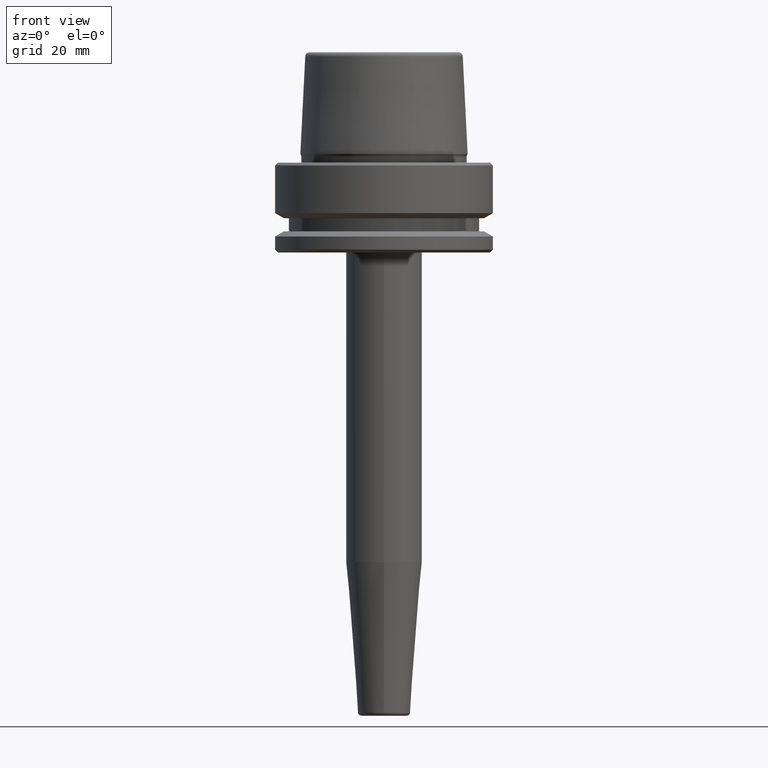
[diagram: clean part render]
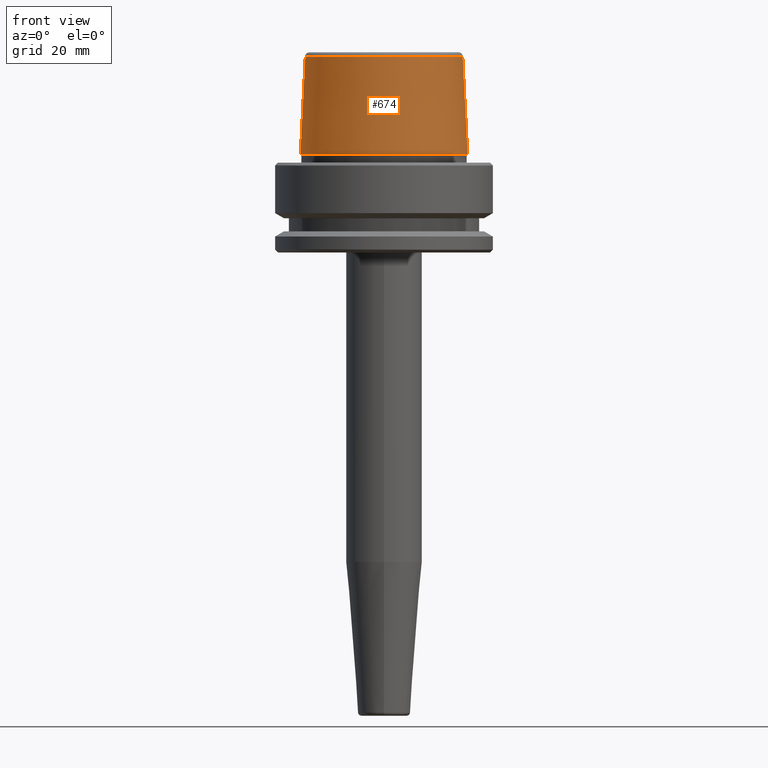
[diagram: same view with one face highlighted and labeled with its STEP entity id]
A machine part, front view. The second image highlights one B-rep face of the part: STEP entity #674.
In plain terms, the highlighted conical surface has half-angle 2.868 deg.
Its self-contained STEP definition (entity closure, byte-faithful):
#32 = EDGE_CURVE ( 'NONE', #615, #500, #248, .T. ) ;
#57 = CARTESIAN_POINT ( 'NONE',  ( -24.19537568275369200, 2.963078938405201500E-015, 2.500000000000002200 ) ) ;
#92 = DIRECTION ( 'NONE',  ( -0.0000000000000000000, -0.0000000000000000000, 1.000000000000000000 ) ) ;
#148 = VERTEX_POINT ( 'NONE', #57 ) ;
#158 = CARTESIAN_POINT ( 'NONE',  ( 24.19537568275369200, 2.963078938405201500E-015, 2.500000000000002200 ) ) ;
#186 = DIRECTION ( 'NONE',  ( -0.05003611051310804400, 0.0000000000000000000, -0.9987474093306675200 ) ) ;
#248 = LINE ( 'NONE', #158, #398 ) ;
#267 = ORIENTED_EDGE ( 'NONE', *, *, #32, .F. ) ;
#293 = VECTOR ( 'NONE', #186, 1000.000000000000200 ) ;
#324 = LINE ( 'NONE', #967, #293 ) ;
#387 = CIRCLE ( 'NONE', #440, 24.19537568275369200 ) ;
#398 = VECTOR ( 'NONE', #1055, 1000.000000000000200 ) ;
#423 = EDGE_LOOP ( 'NONE', ( #267, #523, #755, #830 ) ) ;
#440 = AXIS2_PLACEMENT_3D ( 'NONE', #1093, #502, #1189 ) ;
#456 = AXIS2_PLACEMENT_3D ( 'NONE', #663, #92, #767 ) ;
#500 = VERTEX_POINT ( 'NONE', #1222 ) ;
#502 = DIRECTION ( 'NONE',  ( -0.0000000000000000000, -0.0000000000000000000, 1.000000000000000000 ) ) ;
#523 = ORIENTED_EDGE ( 'NONE', *, *, #1216, .F. ) ;
#525 = FACE_OUTER_BOUND ( 'NONE', #423, .T. ) ;
#615 = VERTEX_POINT ( 'NONE', #1017 ) ;
#640 = CIRCLE ( 'NONE', #456, 22.77957961851797100 ) ;
#663 = CARTESIAN_POINT ( 'NONE',  ( 0.0000000000000000000, 0.0000000000000000000, 30.76004333261571900 ) ) ;
#674 = ADVANCED_FACE ( 'NONE', ( #525 ), #1040, .T. ) ;
#752 = EDGE_CURVE ( 'NONE', #148, #500, #387, .T. ) ;
#755 = ORIENTED_EDGE ( 'NONE', *, *, #1238, .T. ) ;
#767 = DIRECTION ( 'NONE',  ( 1.000000000000000000, 0.0000000000000000000, 0.0000000000000000000 ) ) ;
#830 = ORIENTED_EDGE ( 'NONE', *, *, #752, .T. ) ;
#949 = DIRECTION ( 'NONE',  ( 0.0000000000000000000, 0.0000000000000000000, -1.000000000000000000 ) ) ;
#967 = CARTESIAN_POINT ( 'NONE',  ( -24.19537568275369200, 0.0000000000000000000, 2.500000000000002200 ) ) ;
#1017 = CARTESIAN_POINT ( 'NONE',  ( 22.77957961851797100, 2.876386432489616700E-015, 30.76004333261571900 ) ) ;
#1027 = VERTEX_POINT ( 'NONE', #1129 ) ;
#1040 = CONICAL_SURFACE ( 'NONE', #1187, 24.19537568275369200, 0.05005701257455997400 ) ;
#1055 = DIRECTION ( 'NONE',  ( 0.05003611051310804400, 6.127656258166099700E-018, -0.9987474093306675200 ) ) ;
#1071 = DIRECTION ( 'NONE',  ( -1.000000000000000000, 0.0000000000000000000, 0.0000000000000000000 ) ) ;
#1093 = CARTESIAN_POINT ( 'NONE',  ( 0.0000000000000000000, 0.0000000000000000000, 2.500000000000002200 ) ) ;
#1129 = CARTESIAN_POINT ( 'NONE',  ( -22.77957961851797100, 0.0000000000000000000, 30.76004333261571900 ) ) ;
#1187 = AXIS2_PLACEMENT_3D ( 'NONE', #1252, #949, #1071 ) ;
#1189 = DIRECTION ( 'NONE',  ( 1.000000000000000000, 0.0000000000000000000, 0.0000000000000000000 ) ) ;
#1216 = EDGE_CURVE ( 'NONE', #1027, #615, #640, .T. ) ;
#1222 = CARTESIAN_POINT ( 'NONE',  ( 24.19537568275369200, 0.0000000000000000000, 2.500000000000002200 ) ) ;
#1238 = EDGE_CURVE ( 'NONE', #1027, #148, #324, .T. ) ;
#1252 = CARTESIAN_POINT ( 'NONE',  ( 0.0000000000000000000, 0.0000000000000000000, 2.500000000000002200 ) ) ;